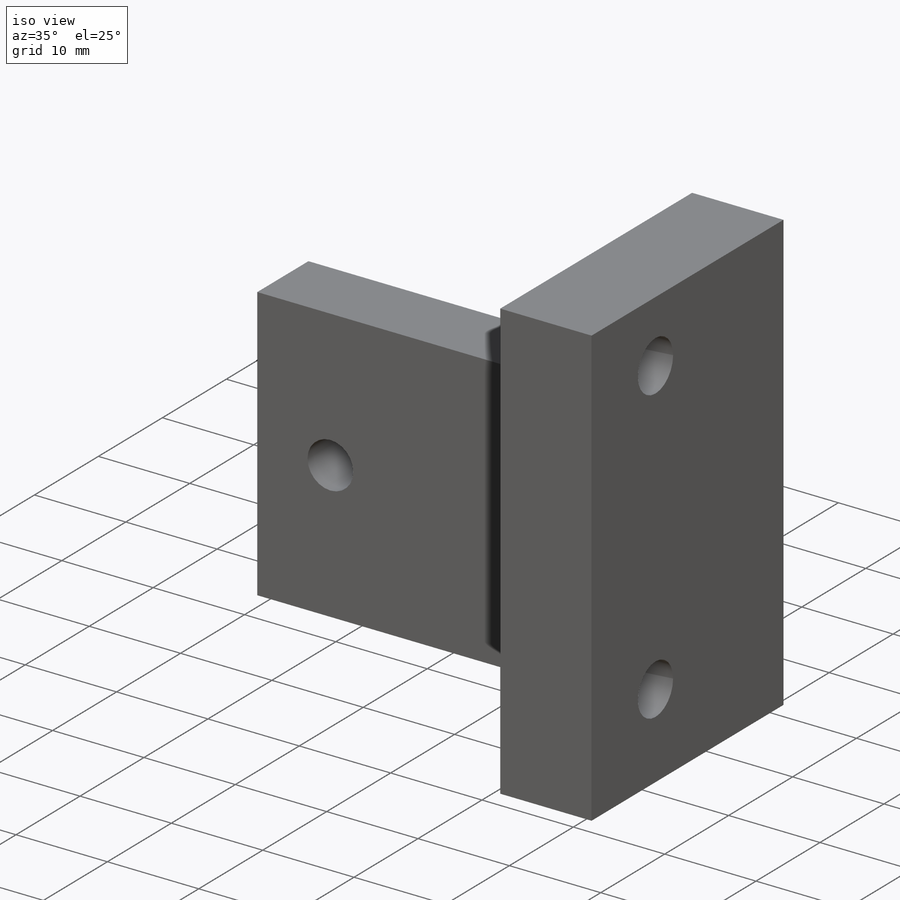
[diagram: iso view]
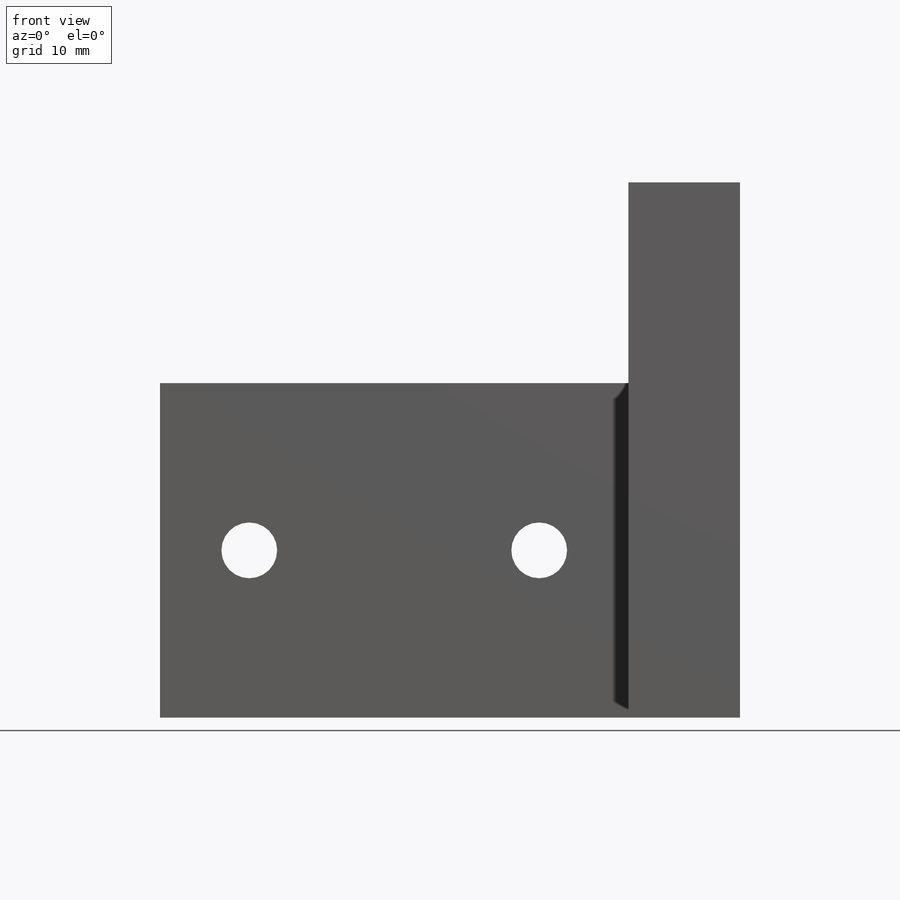
[diagram: front view]
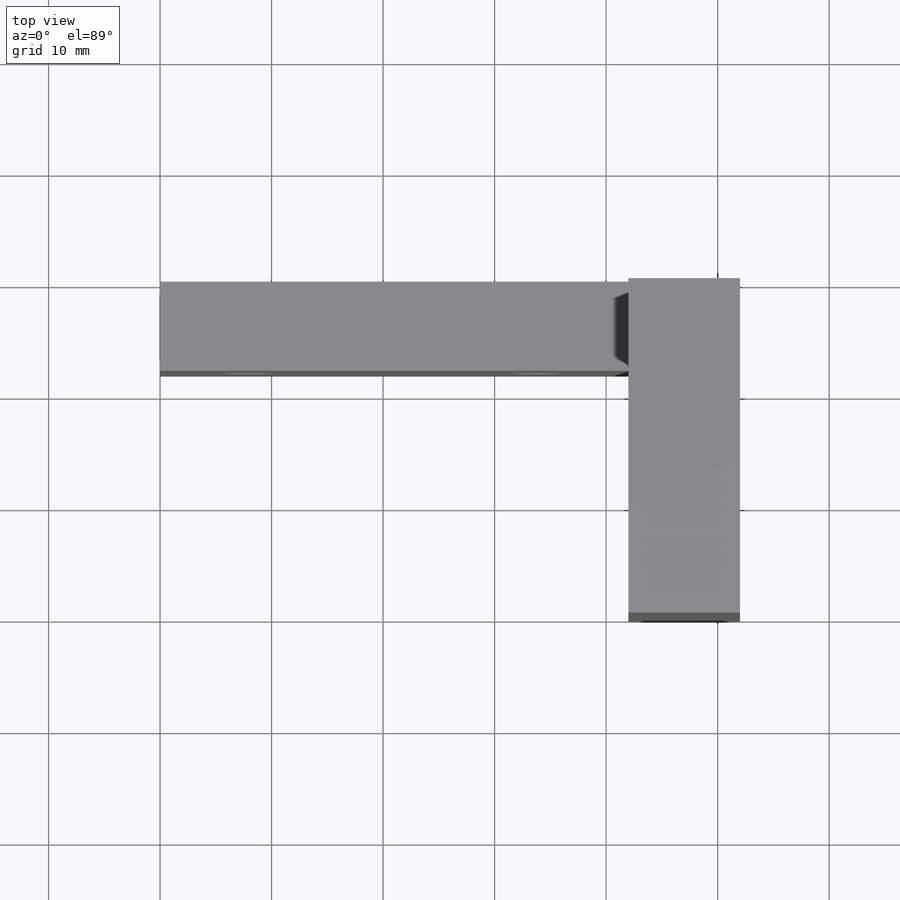
[diagram: top view]
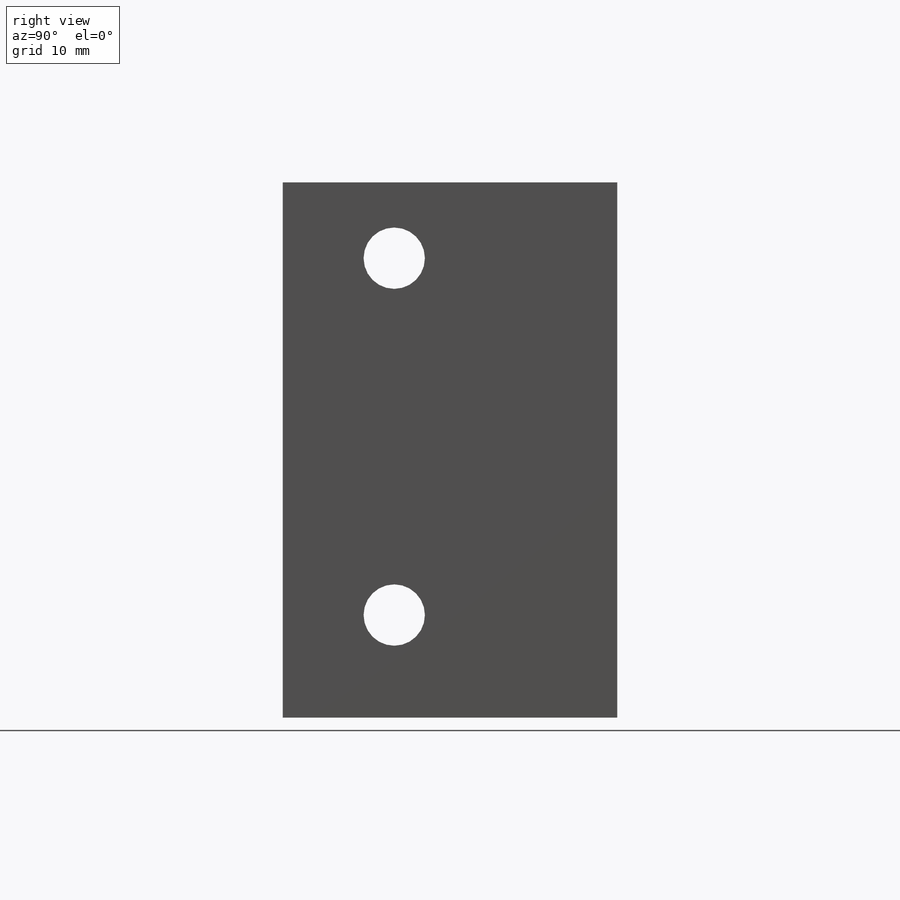
[diagram: right view]
SOLIDWORKS PART (.sldprt)
format: sldprt  version: not decoded by parser v0  size: 242,176 bytes
history: native  units: mm
features: sketch x5, plane x3, cut_extrude x3, extrude x2, material x1 (+9 scaffold rows collapsed)
feature tree (23):
  scaffold x9  (default folders/planes/origin — collapsed)
  material  "Material <not specified>"
  plane  "Plan de face"
  plane  "Plan de dessus"
  plane  "Plan de droite"
  sketch  "Sketch1"  dims[D1=42.0mm D2=30.0mm D3=42.0mm D4=30.0mm D5=148.0mm D6=10.0mm]
  extrude  "Boss-Extrude1"  Depth=8mm
  extrude  "Boss-Extrude2"  [1 undecoded]
  sketch  "Sketch1<3>"  dims[D1=30.0mm]
  sketch  "Sketch2"  dims[D1=5.0mm D2=5.0mm D3=15.0mm D4=8.0mm D5=8.0mm D6=15.0mm]
  cut_extrude  "Cut-Extrude1"  [1 undecoded]
  sketch  "Sketch3"  dims[D2=5.5mm D3=5.5mm D10=5.5mm D11=5.5mm D1=32.0mm D4=9.7mm D5=10.0mm D6=65.1mm D7=32.0mm D8=10.0mm D9=10.0mm]
  cut_extrude  "Cut-Extrude2"  [1 undecoded]
  sketch  "Sketch4"  dims[D1=100.0mm]
  cut_extrude  "Cut-Extrude3"  Depth=52mm
decode coverage: 7 of 10 modeling features carry decoded parameters
note: 3 parameter values undecoded
summary: no parameter record found for 3 features
note: suppression state not decoded; provenance and decode notes live in map.json
